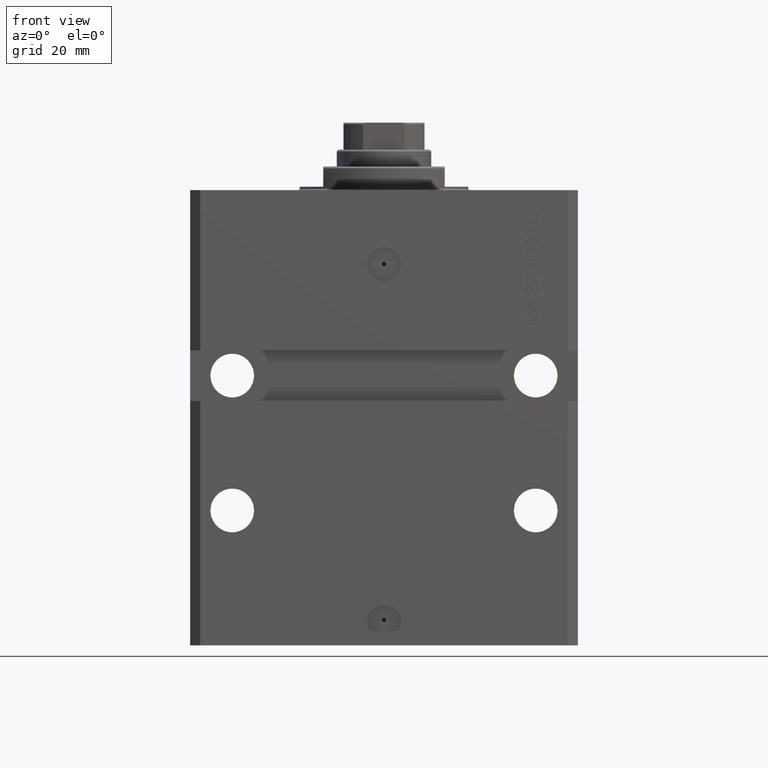
[diagram: clean part render]
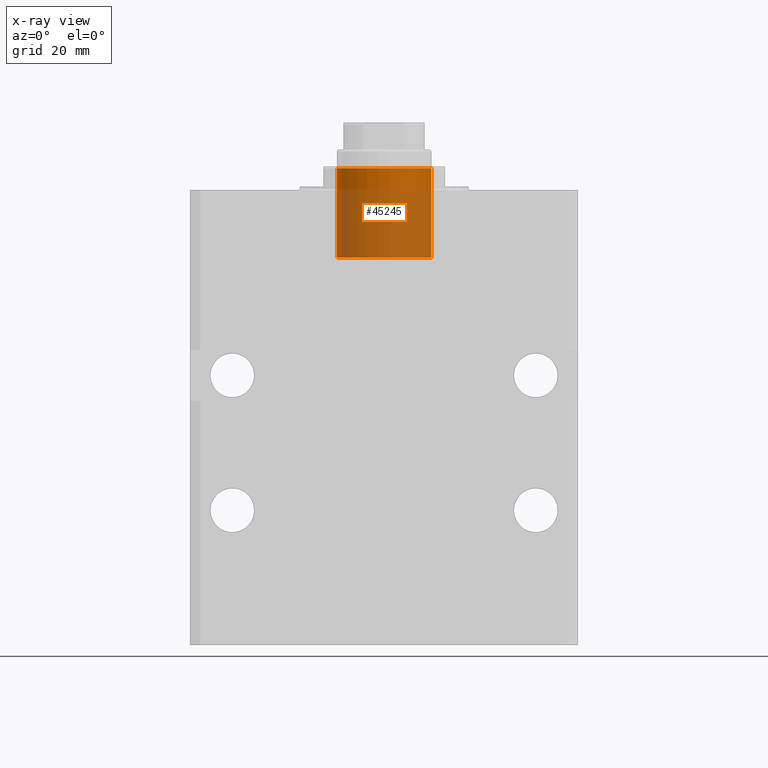
[diagram: x-ray — body ghosted, one internal face saturated and labeled with its STEP entity id]
A machine part, front view, then the same camera in x-ray: the body is ghosted and one INTERNAL B-rep face — a face not visible from any outside direction — is saturated and labeled: STEP entity #45245.
In plain terms, the highlighted cylindrical surface (partial cylindrical patch) has radius 14 mm, axis along (0, -0, 1).
Its self-contained STEP definition (entity closure, byte-faithful):
#2030 = VERTEX_POINT ( 'NONE', #22464 ) ;
#2829 = DIRECTION ( 'NONE',  ( -1.000000000000000000, 0.000000000000000000, 0.000000000000000000 ) ) ;
#2841 = DIRECTION ( 'NONE',  ( 0.000000000000000000, 0.000000000000000000, -1.000000000000000000 ) ) ;
#3506 = LINE ( 'NONE', #22359, #44498 ) ;
#3522 = VERTEX_POINT ( 'NONE', #7313 ) ;
#4477 = EDGE_CURVE ( 'NONE', #20665, #3522, #3506, .T. ) ;
#5340 = CARTESIAN_POINT ( 'NONE',  ( -14.00000000000000000, 0.000000000000000000, 20.00000000000000000 ) ) ;
#6357 = DIRECTION ( 'NONE',  ( -1.000000000000000000, 0.000000000000000000, 0.000000000000000000 ) ) ;
#6582 = CARTESIAN_POINT ( 'NONE',  ( 0.000000000000000000, 0.000000000000000000, 20.00000000000000000 ) ) ;
#7313 = CARTESIAN_POINT ( 'NONE',  ( -14.00000000000000000, 0.000000000000000000, -6.499999999999995559 ) ) ;
#9840 = CIRCLE ( 'NONE', #41917, 14.00000000000000000 ) ;
#9978 = DIRECTION ( 'NONE',  ( -0.000000000000000000, -0.000000000000000000, -1.000000000000000000 ) ) ;
#10727 = DIRECTION ( 'NONE',  ( -1.000000000000000000, 0.000000000000000000, 0.000000000000000000 ) ) ;
#14643 = AXIS2_PLACEMENT_3D ( 'NONE', #6582, #47856, #2829 ) ;
#18266 = CARTESIAN_POINT ( 'NONE',  ( 0.000000000000000000, 0.000000000000000000, 20.00000000000000000 ) ) ;
#19401 = ORIENTED_EDGE ( 'NONE', *, *, #28491, .T. ) ;
#20665 = VERTEX_POINT ( 'NONE', #5340 ) ;
#21816 = AXIS2_PLACEMENT_3D ( 'NONE', #40808, #2841, #6357 ) ;
#22027 = LINE ( 'NONE', #44410, #43692 ) ;
#22359 = CARTESIAN_POINT ( 'NONE',  ( -14.00000000000000000, 0.000000000000000000, 20.00000000000000000 ) ) ;
#22464 = CARTESIAN_POINT ( 'NONE',  ( 14.00000000000000000, 1.714505518806294638E-15, -6.499999999999995559 ) ) ;
#24106 = VERTEX_POINT ( 'NONE', #43922 ) ;
#25069 = CIRCLE ( 'NONE', #21816, 14.00000000000000000 ) ;
#25233 = CYLINDRICAL_SURFACE ( 'NONE', #14643, 14.00000000000000000 ) ;
#28491 = EDGE_CURVE ( 'NONE', #2030, #3522, #25069, .T. ) ;
#29181 = ORIENTED_EDGE ( 'NONE', *, *, #29884, .F. ) ;
#29884 = EDGE_CURVE ( 'NONE', #24106, #20665, #9840, .T. ) ;
#33293 = EDGE_CURVE ( 'NONE', #24106, #2030, #22027, .T. ) ;
#33665 = DIRECTION ( 'NONE',  ( -0.000000000000000000, -0.000000000000000000, -1.000000000000000000 ) ) ;
#40021 = ORIENTED_EDGE ( 'NONE', *, *, #33293, .T. ) ;
#40656 = DIRECTION ( 'NONE',  ( 0.000000000000000000, 0.000000000000000000, -1.000000000000000000 ) ) ;
#40808 = CARTESIAN_POINT ( 'NONE',  ( 0.000000000000000000, 0.000000000000000000, -6.499999999999995559 ) ) ;
#41030 = FACE_OUTER_BOUND ( 'NONE', #45820, .T. ) ;
#41917 = AXIS2_PLACEMENT_3D ( 'NONE', #18266, #40656, #10727 ) ;
#43692 = VECTOR ( 'NONE', #9978, 1000.000000000000000 ) ;
#43922 = CARTESIAN_POINT ( 'NONE',  ( 14.00000000000000000, 1.714505518806294638E-15, 20.00000000000000000 ) ) ;
#44410 = CARTESIAN_POINT ( 'NONE',  ( 14.00000000000000000, 1.714505518806294638E-15, 20.00000000000000000 ) ) ;
#44498 = VECTOR ( 'NONE', #33665, 1000.000000000000000 ) ;
#45245 = ADVANCED_FACE ( 'NONE', ( #41030 ), #25233, .F. ) ;
#45820 = EDGE_LOOP ( 'NONE', ( #29181, #40021, #19401, #48704 ) ) ;
#47856 = DIRECTION ( 'NONE',  ( -0.000000000000000000, -0.000000000000000000, -1.000000000000000000 ) ) ;
#48704 = ORIENTED_EDGE ( 'NONE', *, *, #4477, .F. ) ;